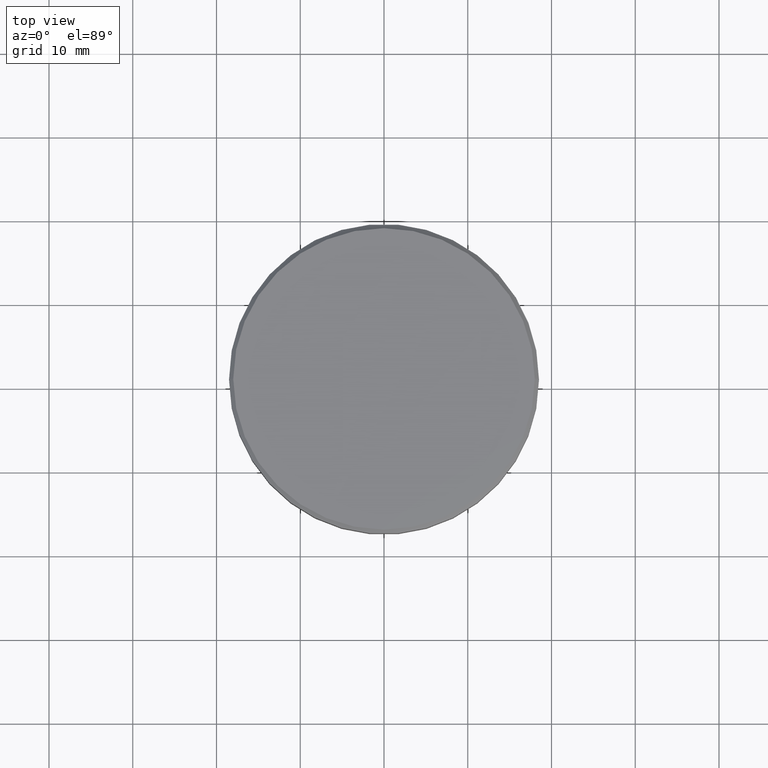
[diagram: clean part render]
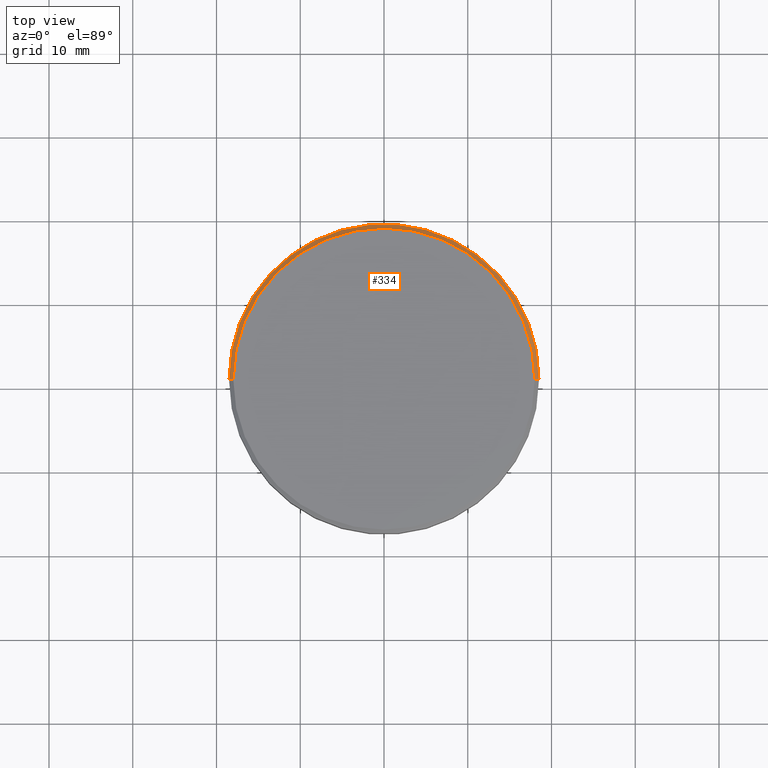
[diagram: same view with one face highlighted and labeled with its STEP entity id]
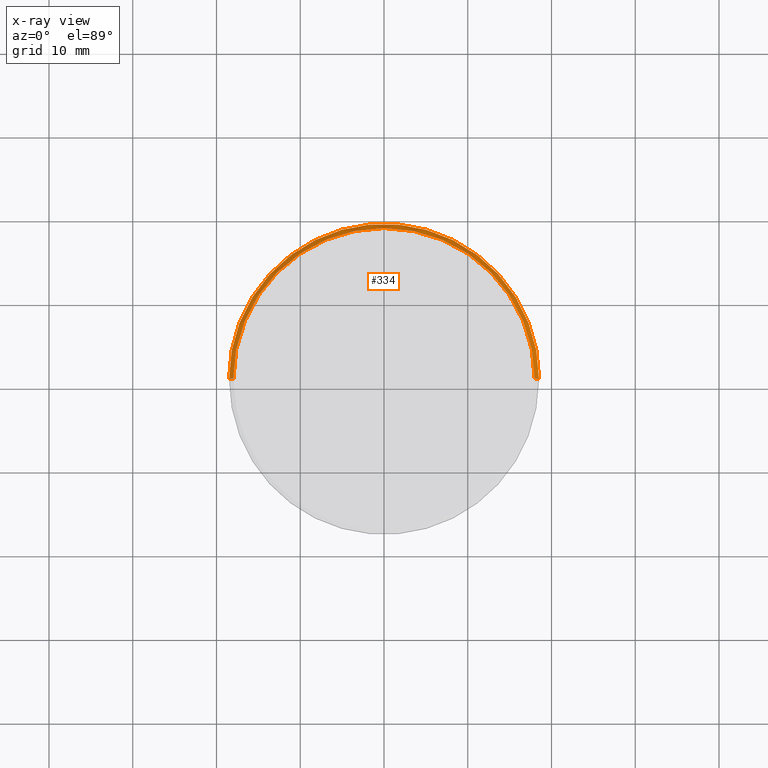
[diagram: x-ray of the same camera — body ghosted, the highlighted face saturated]
A machine part, top view. The second image highlights one B-rep face of the part: STEP entity #334.
The next image is the same camera in x-ray: the body ghosted, the highlighted face saturated — about 0% of this face is hidden behind the body in this view.
In plain terms, the highlighted conical surface has half-angle 45 deg.
Its self-contained STEP definition (entity closure, byte-faithful):
#4 = EDGE_CURVE ( 'NONE', #285, #153, #401, .T. ) ;
#12 = DIRECTION ( 'NONE',  ( 1.000000000000000000, 0.000000000000000000, 0.000000000000000000 ) ) ;
#17 = DIRECTION ( 'NONE',  ( -0.7071067811865352493, 0.000000000000000000, -0.7071067811865597852 ) ) ;
#21 = CARTESIAN_POINT ( 'NONE',  ( -18.00000000000001066, 0.000000000000000000, 0.000000000000000000 ) ) ;
#23 = VECTOR ( 'NONE', #115, 1000.000000000000000 ) ;
#26 = LINE ( 'NONE', #146, #23 ) ;
#31 = ORIENTED_EDGE ( 'NONE', *, *, #111, .F. ) ;
#41 = AXIS2_PLACEMENT_3D ( 'NONE', #60, #360, #91 ) ;
#53 = ORIENTED_EDGE ( 'NONE', *, *, #221, .T. ) ;
#60 = CARTESIAN_POINT ( 'NONE',  ( 0.000000000000000000, 0.000000000000000000, 0.000000000000000000 ) ) ;
#68 = AXIS2_PLACEMENT_3D ( 'NONE', #78, #355, #12 ) ;
#78 = CARTESIAN_POINT ( 'NONE',  ( 0.000000000000000000, 0.000000000000000000, 0.000000000000000000 ) ) ;
#85 = ORIENTED_EDGE ( 'NONE', *, *, #169, .F. ) ;
#89 = DIRECTION ( 'NONE',  ( 1.000000000000000000, 0.000000000000000000, 0.000000000000000000 ) ) ;
#90 = EDGE_LOOP ( 'NONE', ( #148, #53, #85, #31 ) ) ;
#91 = DIRECTION ( 'NONE',  ( -1.000000000000000000, 0.000000000000000000, 0.000000000000000000 ) ) ;
#98 = LINE ( 'NONE', #295, #347 ) ;
#111 = EDGE_CURVE ( 'NONE', #153, #348, #98, .T. ) ;
#115 = DIRECTION ( 'NONE',  ( 0.7071067811865352493, 8.659560562354782482E-17, -0.7071067811865597852 ) ) ;
#121 = VERTEX_POINT ( 'NONE', #390 ) ;
#139 = CARTESIAN_POINT ( 'NONE',  ( 18.00000000000001066, 2.234980408443920004E-15, 0.000000000000000000 ) ) ;
#146 = CARTESIAN_POINT ( 'NONE',  ( 18.00000000000001066, 2.204364238465237006E-15, 0.000000000000000000 ) ) ;
#148 = ORIENTED_EDGE ( 'NONE', *, *, #4, .F. ) ;
#153 = VERTEX_POINT ( 'NONE', #21 ) ;
#169 = EDGE_CURVE ( 'NONE', #348, #121, #296, .T. ) ;
#201 = CONICAL_SURFACE ( 'NONE', #41, 18.00000000000001066, 0.7853981633974309595 ) ;
#221 = EDGE_CURVE ( 'NONE', #285, #121, #26, .T. ) ;
#255 = FACE_OUTER_BOUND ( 'NONE', #90, .T. ) ;
#273 = DIRECTION ( 'NONE',  ( 0.000000000000000000, 0.000000000000000000, -1.000000000000000000 ) ) ;
#285 = VERTEX_POINT ( 'NONE', #139 ) ;
#295 = CARTESIAN_POINT ( 'NONE',  ( -18.00000000000001066, 0.000000000000000000, 0.000000000000000000 ) ) ;
#296 = CIRCLE ( 'NONE', #359, 18.50000000000000000 ) ;
#318 = CARTESIAN_POINT ( 'NONE',  ( -18.50000000000000000, 2.265596578422603396E-15, -0.5000000000000073275 ) ) ;
#334 = ADVANCED_FACE ( 'NONE', ( #255 ), #201, .T. ) ;
#347 = VECTOR ( 'NONE', #17, 1000.000000000000000 ) ;
#348 = VERTEX_POINT ( 'NONE', #318 ) ;
#355 = DIRECTION ( 'NONE',  ( -0.000000000000000000, -0.000000000000000000, 1.000000000000000000 ) ) ;
#359 = AXIS2_PLACEMENT_3D ( 'NONE', #398, #273, #89 ) ;
#360 = DIRECTION ( 'NONE',  ( 0.000000000000000000, 0.000000000000000000, -1.000000000000000000 ) ) ;
#390 = CARTESIAN_POINT ( 'NONE',  ( 18.50000000000000000, 0.000000000000000000, -0.5000000000000073275 ) ) ;
#398 = CARTESIAN_POINT ( 'NONE',  ( 0.000000000000000000, 0.000000000000000000, -0.5000000000000073275 ) ) ;
#401 = CIRCLE ( 'NONE', #68, 18.00000000000001066 ) ;